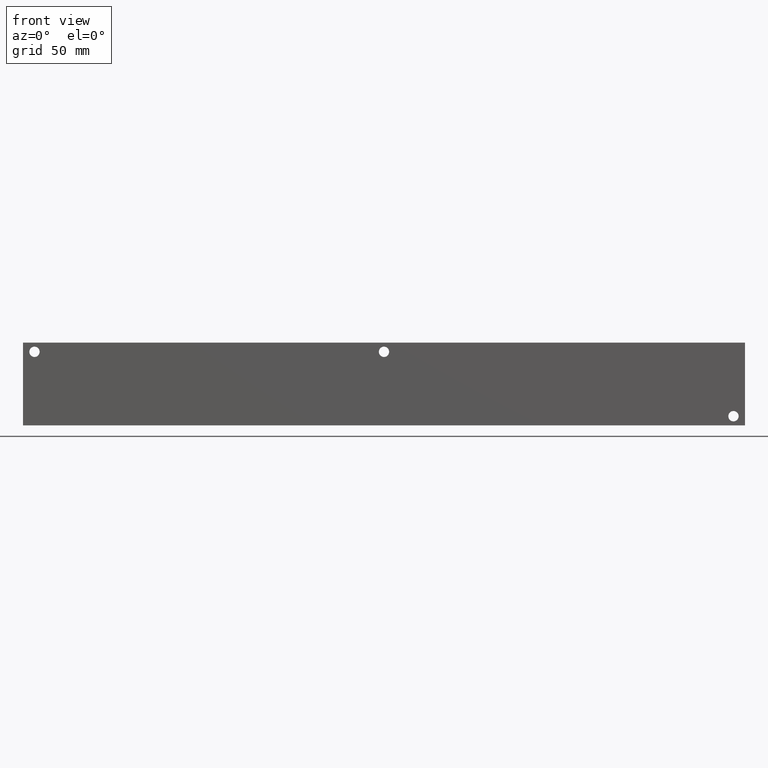
[diagram: clean part render]
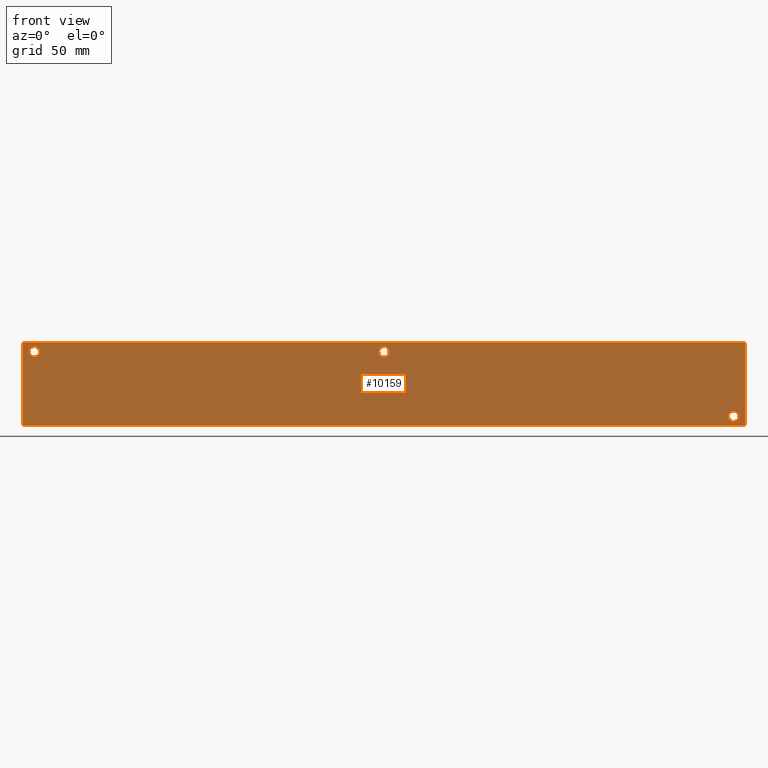
[diagram: same view with one face highlighted and labeled with its STEP entity id]
A machine part, front view. The second image highlights one B-rep face of the part: STEP entity #10159.
In plain terms, the highlighted planar face has unit normal (0, -1, 0).
Its self-contained STEP definition (entity closure, byte-faithful):
#365=CIRCLE('',#10640,3.5687);
#366=CIRCLE('',#10641,3.5687);
#368=CIRCLE('',#10650,3.5687);
#369=CIRCLE('',#10651,3.5687);
#371=CIRCLE('',#10659,3.5687);
#372=CIRCLE('',#10660,3.5687);
#625=FACE_BOUND('',#2026,.T.);
#626=FACE_BOUND('',#2027,.T.);
#627=FACE_BOUND('',#2028,.T.);
#882=PLANE('',#10947);
#1412=FACE_OUTER_BOUND('',#2025,.T.);
#2025=EDGE_LOOP('',(#9167,#9168,#9169,#9170));
#2026=EDGE_LOOP('',(#9171,#9172));
#2027=EDGE_LOOP('',(#9173,#9174));
#2028=EDGE_LOOP('',(#9175,#9176));
#2302=LINE('',#15719,#3117);
#2850=LINE('',#17891,#3665);
#2855=LINE('',#17900,#3670);
#2856=LINE('',#17902,#3671);
#3117=VECTOR('',#11334,10.);
#3665=VECTOR('',#13298,10.);
#3670=VECTOR('',#13307,10.);
#3671=VECTOR('',#13310,10.);
#4248=VERTEX_POINT('',#15717);
#4249=VERTEX_POINT('',#15718);
#4710=VERTEX_POINT('',#17275);
#4711=VERTEX_POINT('',#17276);
#4715=VERTEX_POINT('',#17293);
#4716=VERTEX_POINT('',#17294);
#4720=VERTEX_POINT('',#17309);
#4721=VERTEX_POINT('',#17310);
#4901=VERTEX_POINT('',#17889);
#4903=VERTEX_POINT('',#17898);
#5384=EDGE_CURVE('',#4248,#4249,#2302,.T.);
#6041=EDGE_CURVE('',#4710,#4711,#365,.T.);
#6042=EDGE_CURVE('',#4711,#4710,#366,.T.);
#6051=EDGE_CURVE('',#4715,#4716,#368,.T.);
#6052=EDGE_CURVE('',#4716,#4715,#369,.T.);
#6060=EDGE_CURVE('',#4720,#4721,#371,.T.);
#6061=EDGE_CURVE('',#4721,#4720,#372,.T.);
#6330=EDGE_CURVE('',#4901,#4248,#2850,.T.);
#6335=EDGE_CURVE('',#4903,#4249,#2855,.T.);
#6336=EDGE_CURVE('',#4901,#4903,#2856,.T.);
#9167=ORIENTED_EDGE('',*,*,#6336,.T.);
#9168=ORIENTED_EDGE('',*,*,#6335,.T.);
#9169=ORIENTED_EDGE('',*,*,#5384,.F.);
#9170=ORIENTED_EDGE('',*,*,#6330,.F.);
#9171=ORIENTED_EDGE('',*,*,#6041,.T.);
#9172=ORIENTED_EDGE('',*,*,#6042,.T.);
#9173=ORIENTED_EDGE('',*,*,#6051,.T.);
#9174=ORIENTED_EDGE('',*,*,#6052,.T.);
#9175=ORIENTED_EDGE('',*,*,#6060,.T.);
#9176=ORIENTED_EDGE('',*,*,#6061,.T.);
#10159=ADVANCED_FACE('',(#1412,#625,#626,#627),#882,.T.);
#10640=AXIS2_PLACEMENT_3D('',#17277,#12591,#12592);
#10641=AXIS2_PLACEMENT_3D('',#17278,#12593,#12594);
#10650=AXIS2_PLACEMENT_3D('',#17295,#12614,#12615);
#10651=AXIS2_PLACEMENT_3D('',#17296,#12616,#12617);
#10659=AXIS2_PLACEMENT_3D('',#17311,#12634,#12635);
#10660=AXIS2_PLACEMENT_3D('',#17312,#12636,#12637);
#10947=AXIS2_PLACEMENT_3D('',#17901,#13308,#13309);
#11334=DIRECTION('',(1.,0.,0.));
#12591=DIRECTION('center_axis',(0.,1.,0.));
#12592=DIRECTION('ref_axis',(1.,0.,0.));
#12593=DIRECTION('center_axis',(0.,1.,0.));
#12594=DIRECTION('ref_axis',(1.,0.,0.));
#12614=DIRECTION('center_axis',(0.,1.,0.));
#12615=DIRECTION('ref_axis',(1.,0.,0.));
#12616=DIRECTION('center_axis',(0.,1.,0.));
#12617=DIRECTION('ref_axis',(1.,0.,0.));
#12634=DIRECTION('center_axis',(0.,1.,0.));
#12635=DIRECTION('ref_axis',(1.,0.,0.));
#12636=DIRECTION('center_axis',(0.,1.,0.));
#12637=DIRECTION('ref_axis',(1.,0.,0.));
#13298=DIRECTION('',(0.,0.,1.));
#13307=DIRECTION('',(0.,0.,1.));
#13308=DIRECTION('center_axis',(0.,-1.,0.));
#13309=DIRECTION('ref_axis',(1.,0.,0.));
#13310=DIRECTION('',(1.,0.,0.));
#15717=CARTESIAN_POINT('',(0.,0.,57.15));
#15718=CARTESIAN_POINT('',(498.475,0.,57.15));
#15719=CARTESIAN_POINT('',(0.,0.,57.15));
#17275=CARTESIAN_POINT('',(494.0935,0.,6.35));
#17276=CARTESIAN_POINT('',(486.9561,-7.105427357601E-14,6.35));
#17277=CARTESIAN_POINT('Origin',(490.5248,0.,6.35));
#17278=CARTESIAN_POINT('Origin',(490.5248,0.,6.35));
#17293=CARTESIAN_POINT('',(11.4935,0.,50.8));
#17294=CARTESIAN_POINT('',(4.3561,-7.105427357601E-14,50.8));
#17295=CARTESIAN_POINT('Origin',(7.9248,0.,50.8));
#17296=CARTESIAN_POINT('Origin',(7.9248,0.,50.8));
#17309=CARTESIAN_POINT('',(252.7935,0.,50.8));
#17310=CARTESIAN_POINT('',(245.6561,-7.105427357601E-14,50.8));
#17311=CARTESIAN_POINT('Origin',(249.2248,0.,50.8));
#17312=CARTESIAN_POINT('Origin',(249.2248,0.,50.8));
#17889=CARTESIAN_POINT('',(0.,0.,0.));
#17891=CARTESIAN_POINT('',(0.,0.,0.));
#17898=CARTESIAN_POINT('',(498.475,0.,0.));
#17900=CARTESIAN_POINT('',(498.475,0.,0.));
#17901=CARTESIAN_POINT('Origin',(0.,0.,0.));
#17902=CARTESIAN_POINT('',(0.,0.,0.));